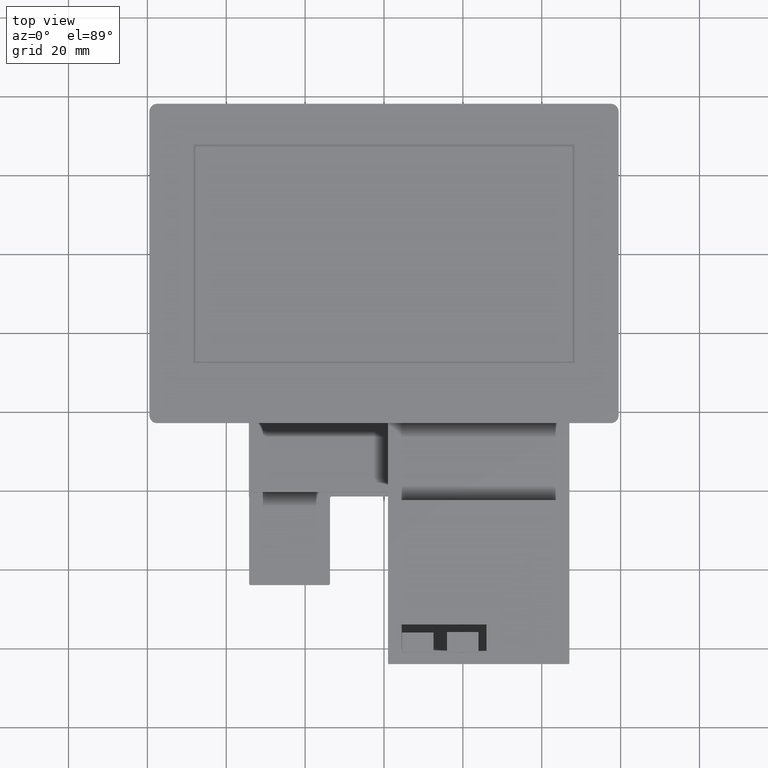
[diagram: clean part render]
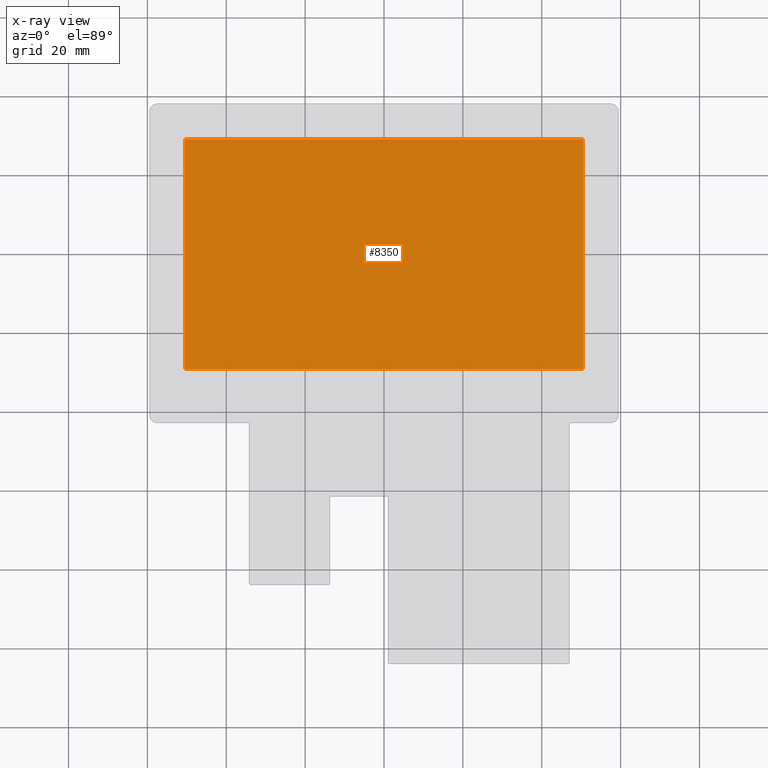
[diagram: x-ray — body ghosted, one internal face saturated and labeled with its STEP entity id]
A machine part, top view, then the same camera in x-ray: the body is ghosted and one INTERNAL B-rep face — a face not visible from any outside direction — is saturated and labeled: STEP entity #8350.
In plain terms, the highlighted planar face has unit normal (0, 0, 1).
Its self-contained STEP definition (entity closure, byte-faithful):
#444=PLANE('',#8874);
#869=FACE_OUTER_BOUND('',#1319,.T.);
#1319=EDGE_LOOP('',(#7868,#7869,#7870,#7871));
#2392=LINE('',#14280,#3470);
#2395=LINE('',#14286,#3473);
#2398=LINE('',#14292,#3476);
#2399=LINE('',#14294,#3477);
#3470=VECTOR('',#10936,10.);
#3473=VECTOR('',#10941,10.);
#3476=VECTOR('',#10946,10.);
#3477=VECTOR('',#10949,10.);
#4321=VERTEX_POINT('',#14273);
#4324=VERTEX_POINT('',#14278);
#4325=VERTEX_POINT('',#14282);
#4327=VERTEX_POINT('',#14288);
#5505=EDGE_CURVE('',#4321,#4324,#2392,.T.);
#5508=EDGE_CURVE('',#4325,#4321,#2395,.T.);
#5511=EDGE_CURVE('',#4327,#4325,#2398,.T.);
#5512=EDGE_CURVE('',#4324,#4327,#2399,.T.);
#7868=ORIENTED_EDGE('',*,*,#5512,.T.);
#7869=ORIENTED_EDGE('',*,*,#5511,.T.);
#7870=ORIENTED_EDGE('',*,*,#5508,.T.);
#7871=ORIENTED_EDGE('',*,*,#5505,.T.);
#8350=ADVANCED_FACE('',(#869),#444,.F.);
#8874=AXIS2_PLACEMENT_3D('',#14293,#10947,#10948);
#10936=DIRECTION('',(1.,6.33362692852811E-16,0.));
#10941=DIRECTION('',(-8.65815638633699E-16,1.,0.));
#10946=DIRECTION('',(-1.,-8.65815638633699E-16,0.));
#10947=DIRECTION('center_axis',(0.,0.,1.));
#10948=DIRECTION('ref_axis',(1.,1.08226954829212E-15,0.));
#10949=DIRECTION('',(8.65815638633699E-16,-1.,0.));
#14273=CARTESIAN_POINT('',(-50.5000000000015,29.148000000001,-1.49999999999999));
#14278=CARTESIAN_POINT('',(50.4999999999995,29.148000000001,-1.49999999999998));
#14280=CARTESIAN_POINT('',(25.2499999999991,29.1480000000009,-1.49999999999999));
#14282=CARTESIAN_POINT('',(-50.5000000000025,-29.111999999999,-1.49999999999991));
#14286=CARTESIAN_POINT('',(-50.5000000000015,-3.36099999999879,-1.49999999999999));
#14288=CARTESIAN_POINT('',(50.4999999999982,-29.1119999999994,-1.49999999999999));
#14292=CARTESIAN_POINT('',(-25.2500000000019,-29.1119999999989,-1.49999999999999));
#14293=CARTESIAN_POINT('Origin',(-1.29479760246909E-12,-35.8699999999985,
-1.49999999999999));
#14294=CARTESIAN_POINT('',(50.4999999999982,-32.4909999999989,-1.49999999999999));